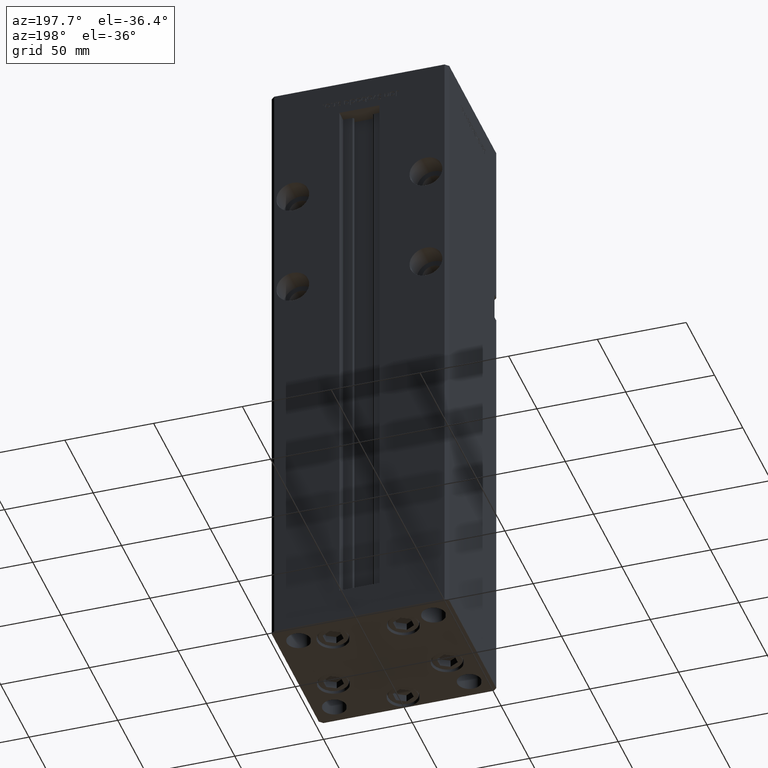
[diagram: clean part render]
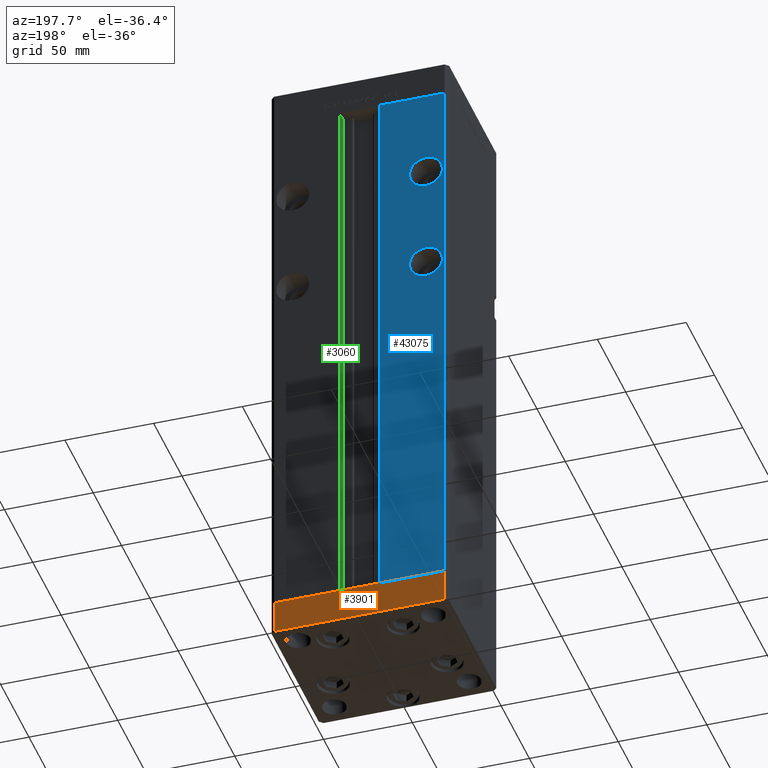
[diagram: same view with three faces highlighted in distinct colors, each labeled with its STEP entity id]
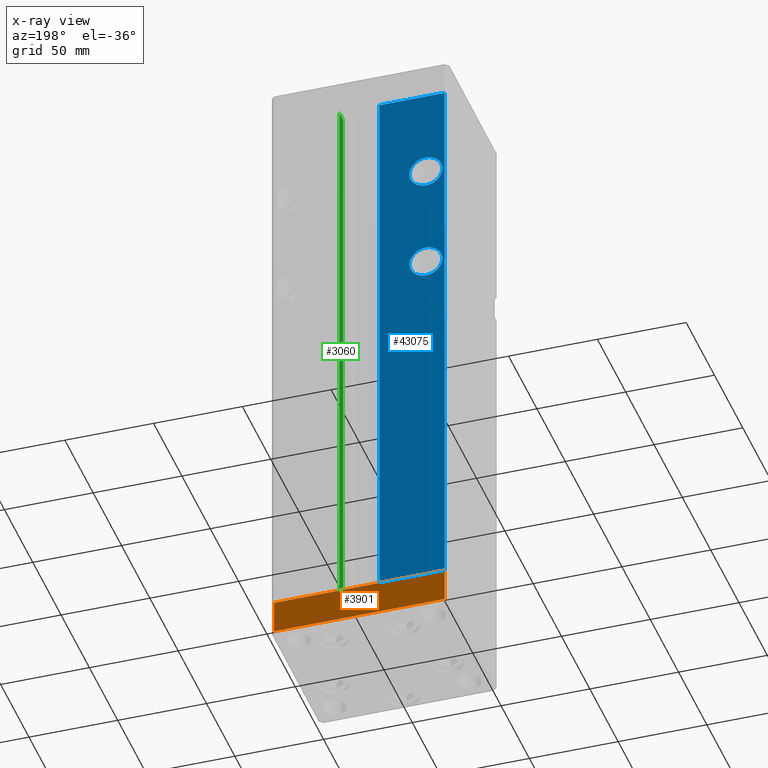
[diagram: x-ray of the same camera — body ghosted, the three highlighted faces saturated]
A machine part, auxiliary view with three faces highlighted in distinct colors.
The next image is the same camera in x-ray (body ghosted, the three faces saturated) — at least one of them is partly hidden behind the body in this view.
Their STEP definitions:

[orange] entity #3901 — the highlighted planar face has unit normal (-0, 1, 0).
#844 = DIRECTION ( 'NONE',  ( -1.000000000000000000, -3.614007241618350743E-16, 0.000000000000000000 ) ) ;
#1846 = LINE ( 'NONE', #39487, #21849 ) ;
#3901 = ADVANCED_FACE ( 'NONE', ( #49388 ), #13128, .T. ) ;
#5938 = EDGE_CURVE ( 'NONE', #29254, #27967, #20256, .T. ) ;
#7821 = VECTOR ( 'NONE', #46416, 1000.000000000000000 ) ;
#7899 = CARTESIAN_POINT ( 'NONE',  ( -48.00000000000000711, 43.49999999999996447, -19.00000000000000000 ) ) ;
#8427 = DIRECTION ( 'NONE',  ( 0.000000000000000000, 0.000000000000000000, 1.000000000000000000 ) ) ;
#8953 = CARTESIAN_POINT ( 'NONE',  ( 47.99999999999990763, 43.50000000000000000, -19.00000000000000000 ) ) ;
#9357 = CARTESIAN_POINT ( 'NONE',  ( 47.99999999999990763, 43.50000000000000000, -19.00000000000000000 ) ) ;
#12666 = CARTESIAN_POINT ( 'NONE',  ( -48.00000000000000711, 43.49999999999996447, -19.00000000000000000 ) ) ;
#13128 = PLANE ( 'NONE',  #44224 ) ;
#13529 = EDGE_CURVE ( 'NONE', #32086, #27967, #1846, .T. ) ;
#13845 = CARTESIAN_POINT ( 'NONE',  ( 47.99999999999990763, 43.50000000000000000, 0.000000000000000000 ) ) ;
#14858 = ORIENTED_EDGE ( 'NONE', *, *, #13529, .F. ) ;
#15027 = DIRECTION ( 'NONE',  ( -1.000000000000000000, -3.614007241618350743E-16, 0.000000000000000000 ) ) ;
#15146 = CARTESIAN_POINT ( 'NONE',  ( -48.00000000000000711, 43.49999999999996447, 0.000000000000000000 ) ) ;
#20256 = LINE ( 'NONE', #7899, #23659 ) ;
#21849 = VECTOR ( 'NONE', #15027, 1000.000000000000000 ) ;
#23659 = VECTOR ( 'NONE', #8427, 1000.000000000000000 ) ;
#26785 = CARTESIAN_POINT ( 'NONE',  ( 47.99999999999990763, 43.50000000000000000, -19.00000000000000000 ) ) ;
#27967 = VERTEX_POINT ( 'NONE', #15146 ) ;
#28519 = ORIENTED_EDGE ( 'NONE', *, *, #37737, .F. ) ;
#29088 = VERTEX_POINT ( 'NONE', #8953 ) ;
#29172 = EDGE_LOOP ( 'NONE', ( #14858, #28519, #39586, #49464 ) ) ;
#29254 = VERTEX_POINT ( 'NONE', #12666 ) ;
#32086 = VERTEX_POINT ( 'NONE', #13845 ) ;
#33377 = CARTESIAN_POINT ( 'NONE',  ( 47.99999999999990763, 43.50000000000000000, -19.00000000000000000 ) ) ;
#34548 = VECTOR ( 'NONE', #844, 1000.000000000000000 ) ;
#37582 = DIRECTION ( 'NONE',  ( -1.000000000000000000, -3.614007241618350743E-16, 0.000000000000000000 ) ) ;
#37697 = LINE ( 'NONE', #33377, #34548 ) ;
#37737 = EDGE_CURVE ( 'NONE', #29088, #32086, #39148, .T. ) ;
#39148 = LINE ( 'NONE', #26785, #7821 ) ;
#39487 = CARTESIAN_POINT ( 'NONE',  ( 47.99999999999990763, 43.50000000000000000, 0.000000000000000000 ) ) ;
#39586 = ORIENTED_EDGE ( 'NONE', *, *, #42285, .T. ) ;
#42285 = EDGE_CURVE ( 'NONE', #29088, #29254, #37697, .T. ) ;
#44224 = AXIS2_PLACEMENT_3D ( 'NONE', #9357, #45099, #37582 ) ;
#45099 = DIRECTION ( 'NONE',  ( -3.614007241618350743E-16, 1.000000000000000000, 0.000000000000000000 ) ) ;
#46416 = DIRECTION ( 'NONE',  ( 0.000000000000000000, 0.000000000000000000, 1.000000000000000000 ) ) ;
#49388 = FACE_OUTER_BOUND ( 'NONE', #29172, .T. ) ;
#49464 = ORIENTED_EDGE ( 'NONE', *, *, #5938, .T. ) ;

[blue] entity #43075 — the highlighted planar face has unit normal (0, -1, 0).
#2098 = DIRECTION ( 'NONE',  ( 0.000000000000000000, 1.000000000000000000, 0.000000000000000000 ) ) ;
#2244 = CIRCLE ( 'NONE', #14273, 9.249999999999980460 ) ;
#2274 = VERTEX_POINT ( 'NONE', #5262 ) ;
#2388 = DIRECTION ( 'NONE',  ( 0.000000000000000000, 0.000000000000000000, -1.000000000000000000 ) ) ;
#2528 = ORIENTED_EDGE ( 'NONE', *, *, #49839, .F. ) ;
#2589 = AXIS2_PLACEMENT_3D ( 'NONE', #22542, #2098, #35427 ) ;
#3792 = DIRECTION ( 'NONE',  ( -0.000000000000000000, -0.000000000000000000, 1.000000000000000000 ) ) ;
#4923 = EDGE_LOOP ( 'NONE', ( #23703, #22607, #48748, #2528 ) ) ;
#5262 = CARTESIAN_POINT ( 'NONE',  ( -48.00000000000000711, 43.50000000000000000, 318.5000000000000000 ) ) ;
#6043 = CARTESIAN_POINT ( 'NONE',  ( -11.24999999999999645, 43.50000000000000000, 318.5000000000000000 ) ) ;
#6297 = EDGE_CURVE ( 'NONE', #46618, #36480, #2244, .T. ) ;
#6777 = VERTEX_POINT ( 'NONE', #12442 ) ;
#7031 = EDGE_CURVE ( 'NONE', #2274, #21339, #16381, .T. ) ;
#7858 = CARTESIAN_POINT ( 'NONE',  ( -11.24999999999999645, 43.50000000000000000, 0.000000000000000000 ) ) ;
#10134 = CARTESIAN_POINT ( 'NONE',  ( -37.50000000000000000, 43.50000000000000000, 199.2499999999999716 ) ) ;
#11252 = EDGE_CURVE ( 'NONE', #48727, #6777, #18721, .T. ) ;
#11867 = ORIENTED_EDGE ( 'NONE', *, *, #6297, .F. ) ;
#12442 = CARTESIAN_POINT ( 'NONE',  ( -48.00000000000000711, 43.50000000000000000, 0.000000000000000000 ) ) ;
#13748 = VERTEX_POINT ( 'NONE', #10134 ) ;
#14273 = AXIS2_PLACEMENT_3D ( 'NONE', #43495, #16416, #31994 ) ;
#14729 = AXIS2_PLACEMENT_3D ( 'NONE', #39496, #26597, #2388 ) ;
#16381 = LINE ( 'NONE', #32217, #17715 ) ;
#16416 = DIRECTION ( 'NONE',  ( 0.000000000000000000, 1.000000000000000000, -0.000000000000000000 ) ) ;
#17715 = VECTOR ( 'NONE', #48624, 1000.000000000000000 ) ;
#17922 = CARTESIAN_POINT ( 'NONE',  ( -11.24999999999999645, 43.50000000000000000, 0.000000000000000000 ) ) ;
#18721 = LINE ( 'NONE', #17922, #27309 ) ;
#21339 = VERTEX_POINT ( 'NONE', #36129 ) ;
#21360 = CARTESIAN_POINT ( 'NONE',  ( -11.24999999999999645, 43.50000000000000000, 0.000000000000000000 ) ) ;
#22214 = DIRECTION ( 'NONE',  ( -1.000000000000000000, 0.000000000000000000, 0.000000000000000000 ) ) ;
#22437 = DIRECTION ( 'NONE',  ( 0.000000000000000000, -1.000000000000000000, 0.000000000000000000 ) ) ;
#22542 = CARTESIAN_POINT ( 'NONE',  ( -37.50000000000000000, 43.50000000000000000, 208.5000000000000000 ) ) ;
#22607 = ORIENTED_EDGE ( 'NONE', *, *, #27292, .F. ) ;
#23703 = ORIENTED_EDGE ( 'NONE', *, *, #7031, .T. ) ;
#23994 = LINE ( 'NONE', #32307, #48503 ) ;
#24465 = CARTESIAN_POINT ( 'NONE',  ( -37.50000000000000000, 43.50000000000000000, 259.2500000000000000 ) ) ;
#24874 = CARTESIAN_POINT ( 'NONE',  ( -37.50000000000000000, 43.50000000000000000, 208.5000000000000000 ) ) ;
#25231 = VERTEX_POINT ( 'NONE', #50860 ) ;
#25991 = AXIS2_PLACEMENT_3D ( 'NONE', #6043, #22437, #30746 ) ;
#26467 = FACE_BOUND ( 'NONE', #29113, .T. ) ;
#26597 = DIRECTION ( 'NONE',  ( 0.000000000000000000, 1.000000000000000000, -0.000000000000000000 ) ) ;
#27292 = EDGE_CURVE ( 'NONE', #48727, #21339, #52958, .T. ) ;
#27309 = VECTOR ( 'NONE', #22214, 1000.000000000000000 ) ;
#28875 = DIRECTION ( 'NONE',  ( 0.000000000000000000, 0.000000000000000000, 1.000000000000000000 ) ) ;
#29113 = EDGE_LOOP ( 'NONE', ( #51904, #11867 ) ) ;
#29148 = DIRECTION ( 'NONE',  ( 0.000000000000000000, 1.000000000000000000, 0.000000000000000000 ) ) ;
#29676 = FACE_BOUND ( 'NONE', #38545, .T. ) ;
#30746 = DIRECTION ( 'NONE',  ( 0.000000000000000000, -0.000000000000000000, -1.000000000000000000 ) ) ;
#31783 = CIRCLE ( 'NONE', #2589, 9.250000000000008882 ) ;
#31994 = DIRECTION ( 'NONE',  ( 0.000000000000000000, 0.000000000000000000, -1.000000000000000000 ) ) ;
#32217 = CARTESIAN_POINT ( 'NONE',  ( -11.24999999999999645, 43.50000000000000000, 318.5000000000000000 ) ) ;
#32307 = CARTESIAN_POINT ( 'NONE',  ( -48.00000000000000711, 43.50000000000000000, 318.5000000000000000 ) ) ;
#35290 = EDGE_CURVE ( 'NONE', #25231, #13748, #31783, .T. ) ;
#35427 = DIRECTION ( 'NONE',  ( 0.000000000000000000, 0.000000000000000000, 1.000000000000000000 ) ) ;
#36129 = CARTESIAN_POINT ( 'NONE',  ( -11.24999999999999645, 43.50000000000000000, 318.5000000000000000 ) ) ;
#36480 = VERTEX_POINT ( 'NONE', #47263 ) ;
#37905 = EDGE_CURVE ( 'NONE', #13748, #25231, #44712, .T. ) ;
#38545 = EDGE_LOOP ( 'NONE', ( #40100, #50046 ) ) ;
#38825 = EDGE_CURVE ( 'NONE', #36480, #46618, #42199, .T. ) ;
#39496 = CARTESIAN_POINT ( 'NONE',  ( -37.50000000000000000, 43.50000000000000000, 268.4999999999999432 ) ) ;
#40100 = ORIENTED_EDGE ( 'NONE', *, *, #35290, .F. ) ;
#40430 = AXIS2_PLACEMENT_3D ( 'NONE', #24874, #29148, #28875 ) ;
#42199 = CIRCLE ( 'NONE', #14729, 9.249999999999980460 ) ;
#42861 = FACE_OUTER_BOUND ( 'NONE', #4923, .T. ) ;
#43075 = ADVANCED_FACE ( 'NONE', ( #26467, #29676, #42861 ), #46083, .F. ) ;
#43495 = CARTESIAN_POINT ( 'NONE',  ( -37.50000000000000000, 43.50000000000000000, 268.4999999999999432 ) ) ;
#44712 = CIRCLE ( 'NONE', #40430, 9.250000000000008882 ) ;
#46083 = PLANE ( 'NONE',  #25991 ) ;
#46618 = VERTEX_POINT ( 'NONE', #24465 ) ;
#47263 = CARTESIAN_POINT ( 'NONE',  ( -37.50000000000000000, 43.50000000000000000, 277.7499999999999432 ) ) ;
#47924 = DIRECTION ( 'NONE',  ( -0.000000000000000000, -0.000000000000000000, -1.000000000000000000 ) ) ;
#48503 = VECTOR ( 'NONE', #47924, 1000.000000000000000 ) ;
#48624 = DIRECTION ( 'NONE',  ( 1.000000000000000000, 0.000000000000000000, 0.000000000000000000 ) ) ;
#48727 = VERTEX_POINT ( 'NONE', #21360 ) ;
#48748 = ORIENTED_EDGE ( 'NONE', *, *, #11252, .T. ) ;
#49704 = VECTOR ( 'NONE', #3792, 1000.000000000000000 ) ;
#49839 = EDGE_CURVE ( 'NONE', #2274, #6777, #23994, .T. ) ;
#50046 = ORIENTED_EDGE ( 'NONE', *, *, #37905, .F. ) ;
#50860 = CARTESIAN_POINT ( 'NONE',  ( -37.50000000000000000, 43.50000000000000000, 217.7500000000000000 ) ) ;
#51904 = ORIENTED_EDGE ( 'NONE', *, *, #38825, .F. ) ;
#52958 = LINE ( 'NONE', #7858, #49704 ) ;

[green] entity #3060 — the highlighted planar face has unit normal (1, 0, 0).
#2051 = CARTESIAN_POINT ( 'NONE',  ( 11.24999999999999645, 37.00000000000000000, 0.000000000000000000 ) ) ;
#3060 = ADVANCED_FACE ( 'NONE', ( #20078 ), #12024, .F. ) ;
#5176 = ORIENTED_EDGE ( 'NONE', *, *, #35495, .F. ) ;
#6439 = CARTESIAN_POINT ( 'NONE',  ( 11.24999999999999645, 37.00000000000000000, 0.000000000000000000 ) ) ;
#6466 = LINE ( 'NONE', #35225, #40360 ) ;
#6511 = VERTEX_POINT ( 'NONE', #6439 ) ;
#10141 = LINE ( 'NONE', #2051, #28247 ) ;
#10827 = ORIENTED_EDGE ( 'NONE', *, *, #26513, .F. ) ;
#12024 = PLANE ( 'NONE',  #48474 ) ;
#14467 = CARTESIAN_POINT ( 'NONE',  ( 11.24999999999999645, 37.00000000000000000, 0.000000000000000000 ) ) ;
#20078 = FACE_OUTER_BOUND ( 'NONE', #20926, .T. ) ;
#20643 = VECTOR ( 'NONE', #42313, 1000.000000000000000 ) ;
#20926 = EDGE_LOOP ( 'NONE', ( #5176, #10827, #52446, #27268 ) ) ;
#22518 = CARTESIAN_POINT ( 'NONE',  ( 11.24999999999999645, 37.00000000000000000, 318.5000000000000000 ) ) ;
#22758 = DIRECTION ( 'NONE',  ( -0.000000000000000000, -0.000000000000000000, 1.000000000000000000 ) ) ;
#26513 = EDGE_CURVE ( 'NONE', #6511, #30124, #39718, .T. ) ;
#27268 = ORIENTED_EDGE ( 'NONE', *, *, #34888, .F. ) ;
#28247 = VECTOR ( 'NONE', #22758, 1000.000000000000000 ) ;
#28348 = VERTEX_POINT ( 'NONE', #22518 ) ;
#28389 = CARTESIAN_POINT ( 'NONE',  ( 11.24999999999999645, 37.00000000000000000, 0.000000000000000000 ) ) ;
#30124 = VERTEX_POINT ( 'NONE', #30375 ) ;
#30375 = CARTESIAN_POINT ( 'NONE',  ( 11.24999999999999645, 43.50000000000000000, 0.000000000000000000 ) ) ;
#32606 = EDGE_CURVE ( 'NONE', #6511, #28348, #10141, .T. ) ;
#34888 = EDGE_CURVE ( 'NONE', #38786, #28348, #6466, .T. ) ;
#35225 = CARTESIAN_POINT ( 'NONE',  ( 11.24999999999999645, 0.000000000000000000, 318.5000000000000000 ) ) ;
#35299 = LINE ( 'NONE', #38811, #20643 ) ;
#35495 = EDGE_CURVE ( 'NONE', #30124, #38786, #35299, .T. ) ;
#36726 = DIRECTION ( 'NONE',  ( 0.000000000000000000, 0.000000000000000000, -1.000000000000000000 ) ) ;
#38786 = VERTEX_POINT ( 'NONE', #51812 ) ;
#38811 = CARTESIAN_POINT ( 'NONE',  ( 11.24999999999999645, 43.50000000000000000, 0.000000000000000000 ) ) ;
#39375 = VECTOR ( 'NONE', #43211, 1000.000000000000000 ) ;
#39718 = LINE ( 'NONE', #14467, #39375 ) ;
#40360 = VECTOR ( 'NONE', #51333, 1000.000000000000000 ) ;
#42313 = DIRECTION ( 'NONE',  ( -0.000000000000000000, -0.000000000000000000, 1.000000000000000000 ) ) ;
#43211 = DIRECTION ( 'NONE',  ( 0.000000000000000000, 1.000000000000000000, 0.000000000000000000 ) ) ;
#44786 = DIRECTION ( 'NONE',  ( 1.000000000000000000, -0.000000000000000000, 0.000000000000000000 ) ) ;
#48474 = AXIS2_PLACEMENT_3D ( 'NONE', #28389, #44786, #36726 ) ;
#51333 = DIRECTION ( 'NONE',  ( -0.000000000000000000, -1.000000000000000000, 0.000000000000000000 ) ) ;
#51812 = CARTESIAN_POINT ( 'NONE',  ( 11.24999999999998934, 43.50000000000000000, 318.5000000000000000 ) ) ;
#52446 = ORIENTED_EDGE ( 'NONE', *, *, #32606, .T. ) ;